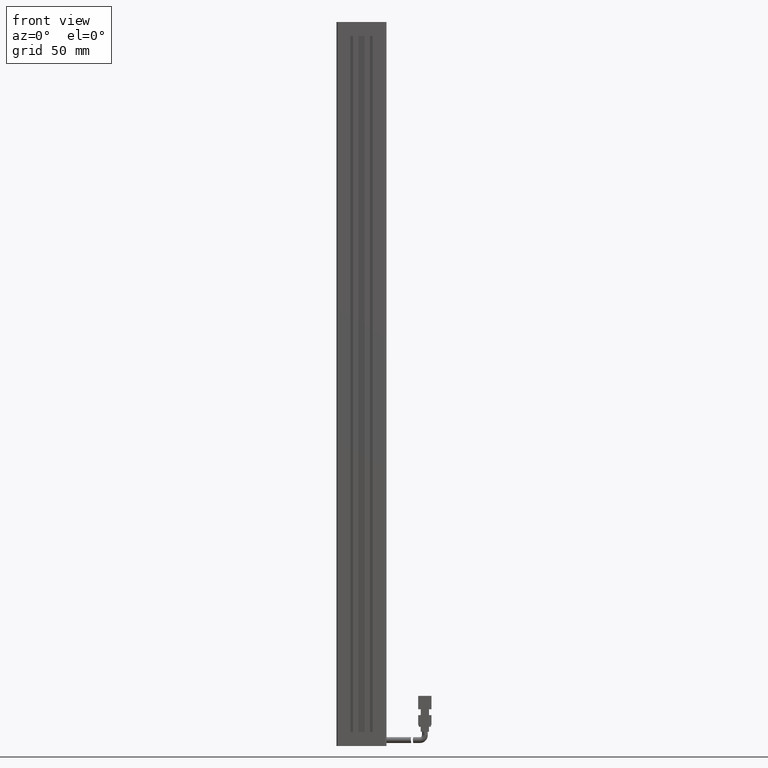
[diagram: clean part render]
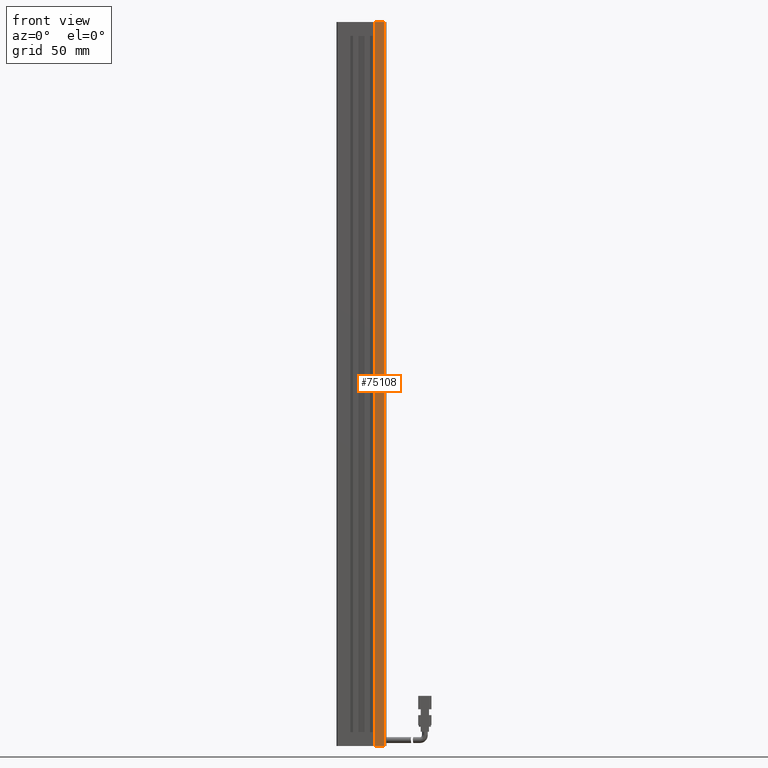
[diagram: same view with one face highlighted and labeled with its STEP entity id]
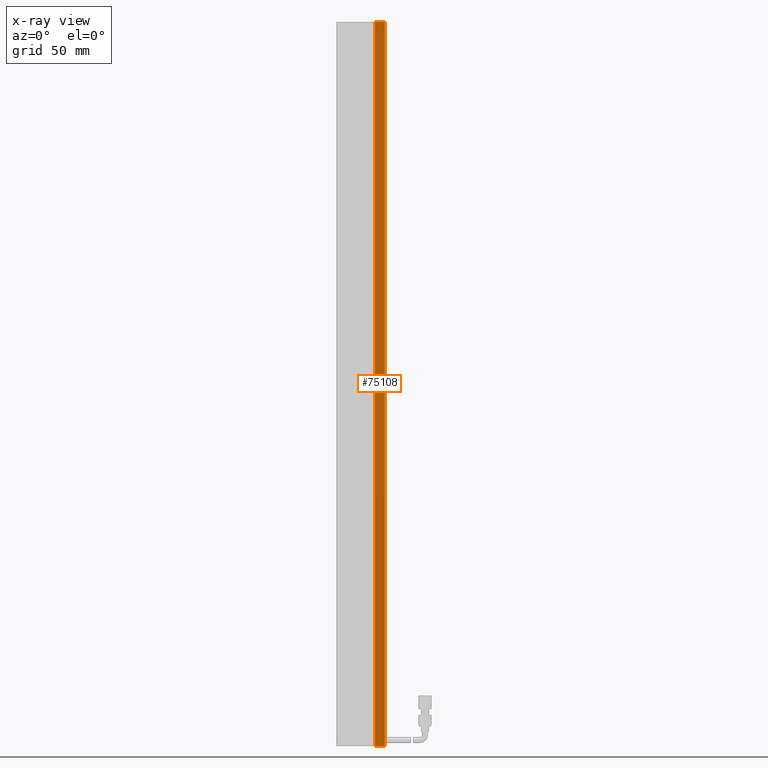
[diagram: x-ray of the same camera — body ghosted, the highlighted face saturated]
A machine part, front view. The second image highlights one B-rep face of the part: STEP entity #75108.
The next image is the same camera in x-ray: the body ghosted, the highlighted face saturated — about 0% of this face is hidden behind the body in this view.
In plain terms, the highlighted planar face has unit normal (0, 1, -0).
Its self-contained STEP definition (entity closure, byte-faithful):
#2580 = PLANE ( 'NONE',  #40053 ) ;
#4917 = EDGE_CURVE ( 'NONE', #34948, #71971, #31535, .T. ) ;
#5906 = EDGE_LOOP ( 'NONE', ( #32241, #63820, #45568, #40229 ) ) ;
#6643 = VECTOR ( 'NONE', #35484, 1000.000000000000000 ) ;
#8474 = CARTESIAN_POINT ( 'NONE',  ( 40.92537974683542500, 10.69594479660387000, 102.0000000000000000 ) ) ;
#10976 = CARTESIAN_POINT ( 'NONE',  ( 54.92537974683542500, 10.69594479660386800, 102.0000000000000000 ) ) ;
#13230 = LINE ( 'NONE', #8474, #43943 ) ;
#14622 = CARTESIAN_POINT ( 'NONE',  ( 54.92537974683542500, 10.69594479660386800, -332.0000000000000000 ) ) ;
#15469 = CARTESIAN_POINT ( 'NONE',  ( 54.92537974683542500, 10.69594479660386800, 102.0000000000000000 ) ) ;
#27236 = CARTESIAN_POINT ( 'NONE',  ( 40.92537974683542500, 10.69594479660387300, 102.0000000000000000 ) ) ;
#31535 = LINE ( 'NONE', #35983, #6643 ) ;
#32241 = ORIENTED_EDGE ( 'NONE', *, *, #46435, .F. ) ;
#33394 = DIRECTION ( 'NONE',  ( -1.000000000000000000, 3.614007241618344800E-016, 0.0000000000000000000 ) ) ;
#33454 = VECTOR ( 'NONE', #48424, 1000.000000000000000 ) ;
#34948 = VERTEX_POINT ( 'NONE', #52144 ) ;
#35392 = LINE ( 'NONE', #66699, #33454 ) ;
#35484 = DIRECTION ( 'NONE',  ( 1.000000000000000000, 0.0000000000000000000, 0.0000000000000000000 ) ) ;
#35983 = CARTESIAN_POINT ( 'NONE',  ( 40.92537974683542500, 10.69594479660387000, -332.0000000000000000 ) ) ;
#36675 = VERTEX_POINT ( 'NONE', #10976 ) ;
#40053 = AXIS2_PLACEMENT_3D ( 'NONE', #27236, #70258, #33394 ) ;
#40229 = ORIENTED_EDGE ( 'NONE', *, *, #4917, .T. ) ;
#43221 = EDGE_CURVE ( 'NONE', #48888, #36675, #13230, .T. ) ;
#43943 = VECTOR ( 'NONE', #69429, 1000.000000000000000 ) ;
#45568 = ORIENTED_EDGE ( 'NONE', *, *, #56221, .F. ) ;
#46435 = EDGE_CURVE ( 'NONE', #36675, #71971, #57479, .T. ) ;
#48424 = DIRECTION ( 'NONE',  ( 0.0000000000000000000, 0.0000000000000000000, 1.000000000000000000 ) ) ;
#48888 = VERTEX_POINT ( 'NONE', #60442 ) ;
#52144 = CARTESIAN_POINT ( 'NONE',  ( 48.92537974683541800, 10.69594479660387000, -332.0000000000000000 ) ) ;
#56221 = EDGE_CURVE ( 'NONE', #34948, #48888, #35392, .T. ) ;
#57479 = LINE ( 'NONE', #15469, #63247 ) ;
#58454 = DIRECTION ( 'NONE',  ( -0.0000000000000000000, -0.0000000000000000000, -1.000000000000000000 ) ) ;
#60442 = CARTESIAN_POINT ( 'NONE',  ( 48.92537974683541800, 10.69594479660387000, 102.0000000000000000 ) ) ;
#63247 = VECTOR ( 'NONE', #58454, 1000.000000000000000 ) ;
#63820 = ORIENTED_EDGE ( 'NONE', *, *, #43221, .F. ) ;
#66699 = CARTESIAN_POINT ( 'NONE',  ( 48.92537974683541800, 10.69594479660387000, 102.0000000000000000 ) ) ;
#67610 = FACE_OUTER_BOUND ( 'NONE', #5906, .T. ) ;
#69429 = DIRECTION ( 'NONE',  ( 1.000000000000000000, 0.0000000000000000000, 0.0000000000000000000 ) ) ;
#70258 = DIRECTION ( 'NONE',  ( 3.614007241618344800E-016, 1.000000000000000000, -0.0000000000000000000 ) ) ;
#71971 = VERTEX_POINT ( 'NONE', #14622 ) ;
#75108 = ADVANCED_FACE ( 'NONE', ( #67610 ), #2580, .F. ) ;